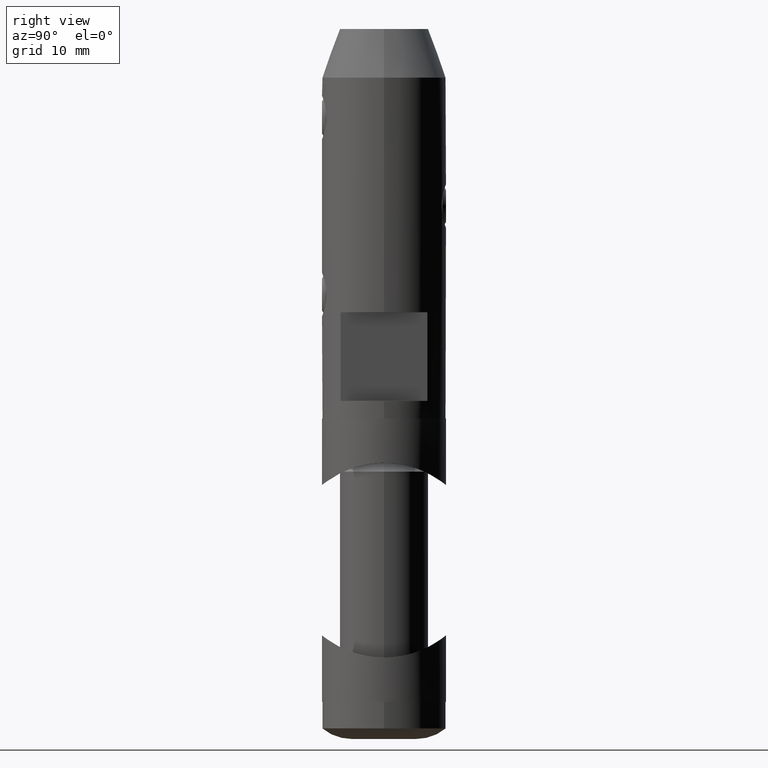
[diagram: clean part render]
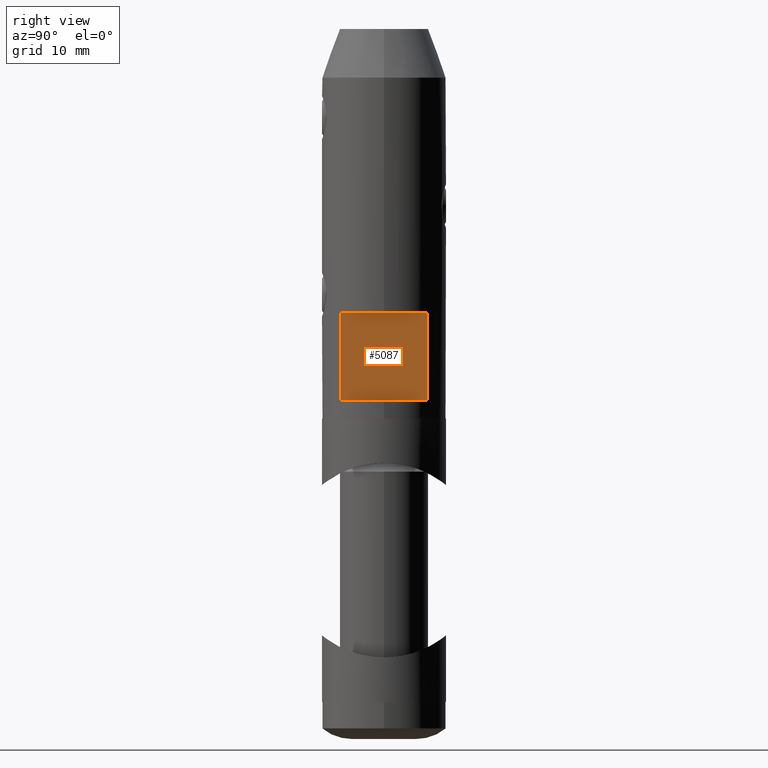
[diagram: same view with one face highlighted and labeled with its STEP entity id]
A machine part, right view. The second image highlights one B-rep face of the part: STEP entity #5087.
In plain terms, the highlighted planar face has unit normal (-1, 0, -0).
Its self-contained STEP definition (entity closure, byte-faithful):
#147 = CARTESIAN_POINT ( 'NONE',  ( 5.000000000000001776, 6.999999999999999112, -19.99999999999999645 ) ) ;
#665 = PLANE ( 'NONE',  #12183 ) ;
#1739 = CARTESIAN_POINT ( 'NONE',  ( 4.999999999999998224, 4.898979485566355763, -9.999999999999998224 ) ) ;
#2378 = VERTEX_POINT ( 'NONE', #1739 ) ;
#3248 = ORIENTED_EDGE ( 'NONE', *, *, #12133, .T. ) ;
#4248 = EDGE_CURVE ( 'NONE', #9841, #17220, #13978, .T. ) ;
#5049 = CARTESIAN_POINT ( 'NONE',  ( 5.000000000000001776, -4.898979485566350434, -19.99999999999999645 ) ) ;
#5087 = ADVANCED_FACE ( 'NONE', ( #18352 ), #665, .F. ) ;
#5181 = VECTOR ( 'NONE', #15942, 1000.000000000000000 ) ;
#5419 = DIRECTION ( 'NONE',  ( -0.000000000000000000, -0.000000000000000000, -1.000000000000000000 ) ) ;
#5539 = DIRECTION ( 'NONE',  ( -0.000000000000000000, -1.000000000000000000, 0.000000000000000000 ) ) ;
#5623 = CARTESIAN_POINT ( 'NONE',  ( 5.000000000000000000, -4.898979485566353986, -22.00000000000000000 ) ) ;
#6023 = LINE ( 'NONE', #5623, #18013 ) ;
#6223 = DIRECTION ( 'NONE',  ( -0.000000000000000000, -1.000000000000000000, 0.000000000000000000 ) ) ;
#6434 = CARTESIAN_POINT ( 'NONE',  ( 5.000000000000000000, 4.898979485566353986, -22.00000000000000000 ) ) ;
#6918 = VERTEX_POINT ( 'NONE', #17331 ) ;
#8658 = DIRECTION ( 'NONE',  ( -1.734723475976807834E-16, 0.000000000000000000, 1.000000000000000000 ) ) ;
#9305 = CARTESIAN_POINT ( 'NONE',  ( 5.000000000000001776, 4.898979485566354874, -19.99999999999999645 ) ) ;
#9841 = VERTEX_POINT ( 'NONE', #9305 ) ;
#10845 = EDGE_LOOP ( 'NONE', ( #3248, #15652, #16126, #17894 ) ) ;
#11265 = VECTOR ( 'NONE', #6223, 1000.000000000000000 ) ;
#11784 = CARTESIAN_POINT ( 'NONE',  ( 5.000000000000001776, 6.999999999999999112, -19.99999999999999645 ) ) ;
#12133 = EDGE_CURVE ( 'NONE', #6918, #17220, #6023, .T. ) ;
#12183 = AXIS2_PLACEMENT_3D ( 'NONE', #11784, #13093, #8658 ) ;
#13043 = LINE ( 'NONE', #6434, #5181 ) ;
#13093 = DIRECTION ( 'NONE',  ( -1.000000000000000000, 0.000000000000000000, -1.734723475976807834E-16 ) ) ;
#13978 = LINE ( 'NONE', #147, #11265 ) ;
#14922 = CARTESIAN_POINT ( 'NONE',  ( 5.000000000000000000, 6.999999999999999112, -9.999999999999998224 ) ) ;
#15055 = EDGE_CURVE ( 'NONE', #2378, #6918, #17973, .T. ) ;
#15652 = ORIENTED_EDGE ( 'NONE', *, *, #4248, .F. ) ;
#15942 = DIRECTION ( 'NONE',  ( 0.000000000000000000, 0.000000000000000000, 1.000000000000000000 ) ) ;
#16126 = ORIENTED_EDGE ( 'NONE', *, *, #18094, .T. ) ;
#17220 = VERTEX_POINT ( 'NONE', #5049 ) ;
#17331 = CARTESIAN_POINT ( 'NONE',  ( 4.999999999999998224, -4.898979485566355763, -9.999999999999998224 ) ) ;
#17709 = VECTOR ( 'NONE', #5539, 1000.000000000000000 ) ;
#17894 = ORIENTED_EDGE ( 'NONE', *, *, #15055, .T. ) ;
#17973 = LINE ( 'NONE', #14922, #17709 ) ;
#18013 = VECTOR ( 'NONE', #5419, 1000.000000000000000 ) ;
#18094 = EDGE_CURVE ( 'NONE', #9841, #2378, #13043, .T. ) ;
#18352 = FACE_OUTER_BOUND ( 'NONE', #10845, .T. ) ;